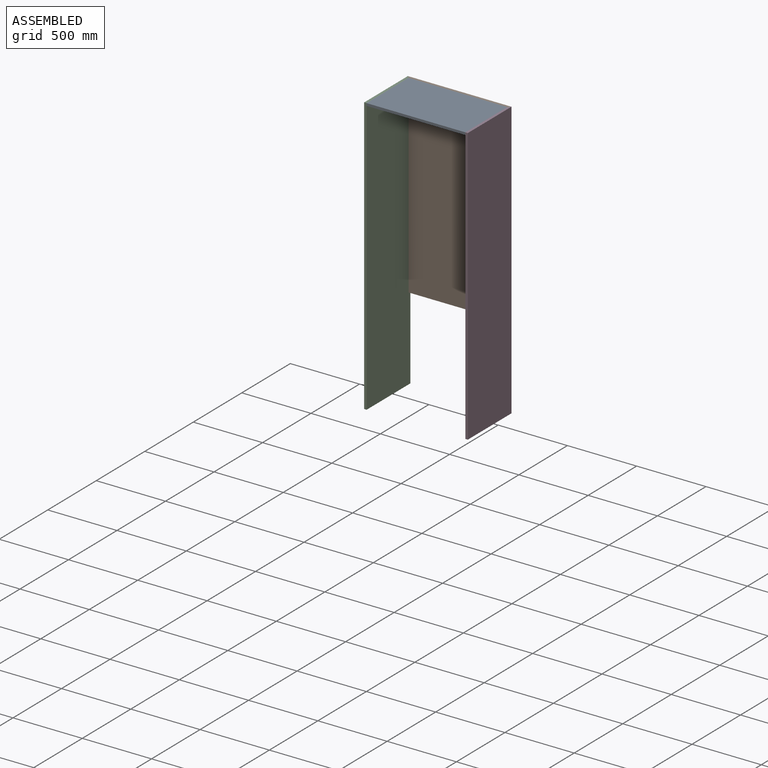
[diagram: assembled view]
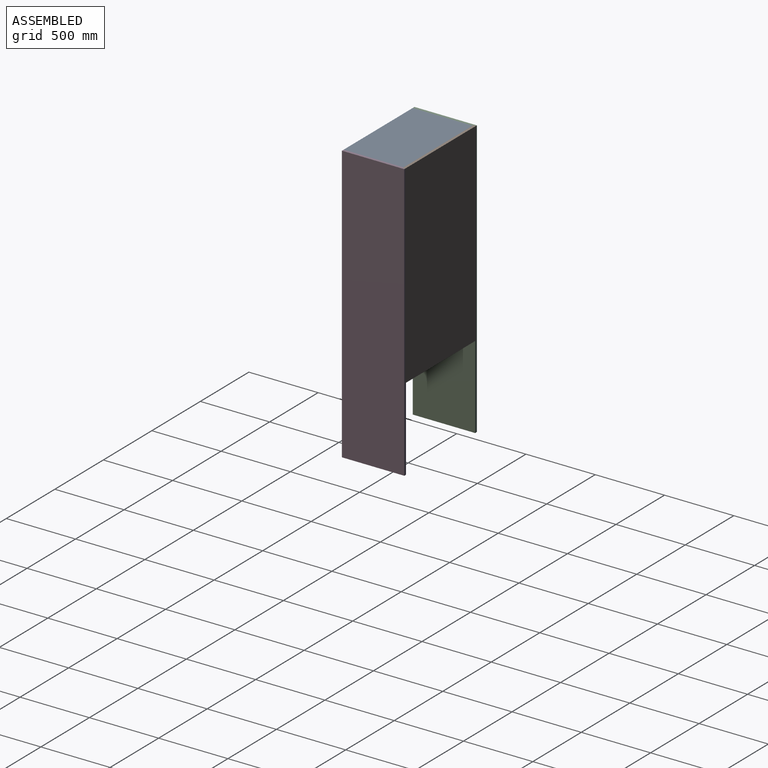
[diagram: assembled view, second angle]
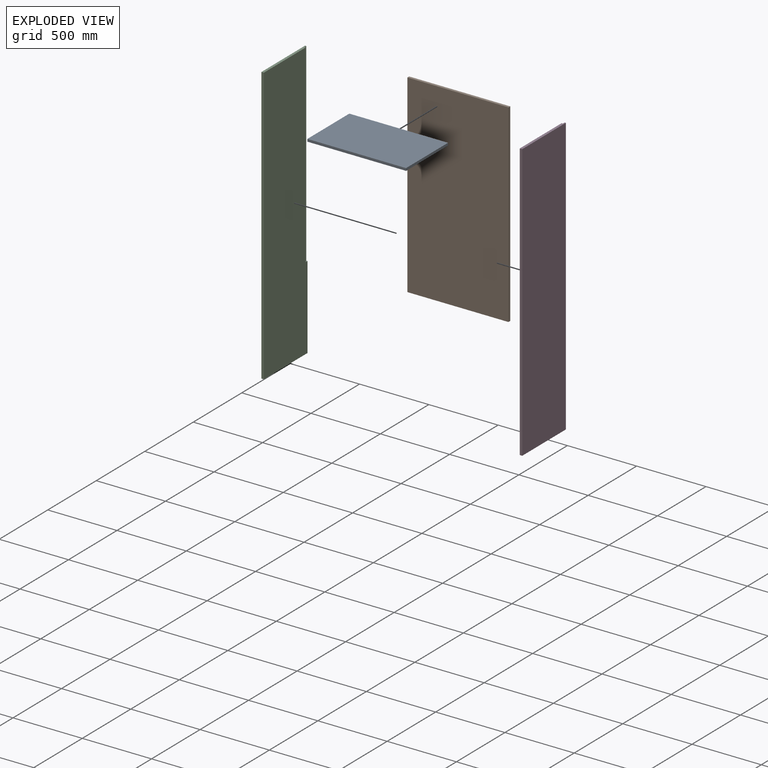
[diagram: exploded view]
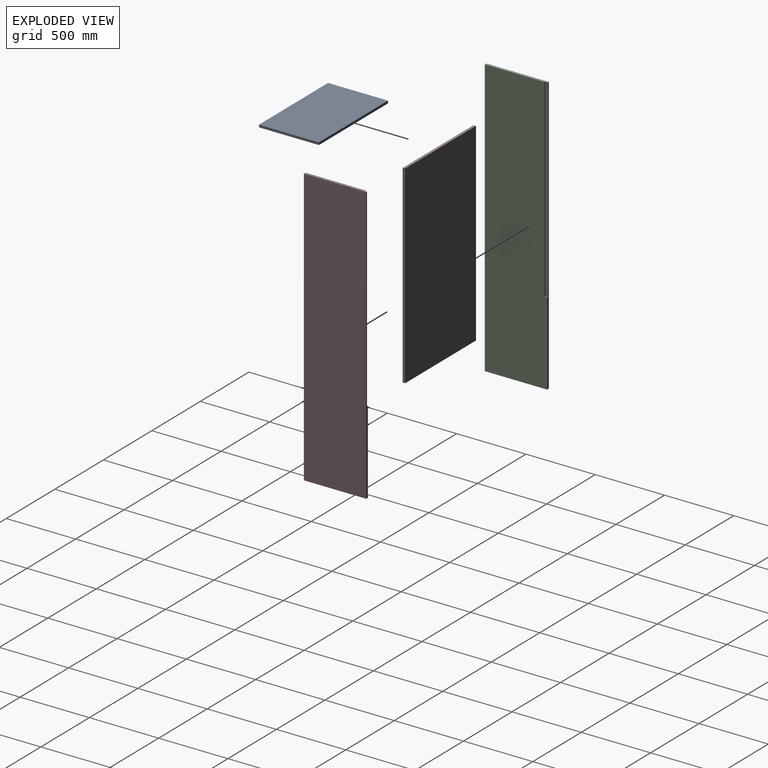
[diagram: exploded view, second angle]
ASSEMBLY  parts=4 mates=9
PART A: 6 faces, bbox 712x432x18 mm
  f0: plane 712x18mm, normal (0,1,0), area 12816mm2, adj f1,f3,f4,f5
  f1: plane 432x18mm, normal (-1,0,0), area 7776mm2, adj f0,f2,f4,f5
  f2: plane 712x18mm, normal (0,-1,0), area 12816mm2, adj f1,f3,f4,f5
  f3: plane 432x18mm, normal (1,0,0), area 7776mm2, adj f0,f2,f4,f5
  f4: plane 712x432mm, normal (0,0,1), area 307584mm2, adj f0,f1,f2,f3
  f5: plane 712x432mm, normal (0,0,-1), area 307584mm2, adj f0,f1,f2,f3
PART B: 6 faces, bbox 730x18x1400 mm
  f0: plane 730x18mm, normal (0,0,1), area 13140mm2, adj f1,f3,f4,f5
  f1: plane 1400x18mm, normal (-1,0,0), area 25200mm2, adj f0,f2,f4,f5
  f2: plane 730x18mm, normal (0,0,-1), area 13140mm2, adj f1,f3,f4,f5
  f3: plane 1400x18mm, normal (1,0,0), area 25200mm2, adj f0,f2,f4,f5
  f4: plane 1400x730mm, normal (0,-1,0), area 1022000mm2, adj f0,f1,f2,f3
  f5: plane 1400x730mm, normal (0,1,0), area 1022000mm2, adj f0,f1,f2,f3
PART C: 9 faces, bbox 18x450x2000 mm
  f0: plane 450x18mm, normal (0,0,1), area 7938mm2, adj f1,f2,f4,f5,f6,f7
  f1: plane 2000x450mm, normal (1,0,0), area 874800mm2, adj f0,f2,f3,f4,f6,f8
  f2: plane 2000x18mm, normal (0,-1,0), area 36000mm2, adj f0,f1,f3,f5
  f3: plane 450x18mm, normal (0,0,-1), area 8100mm2, adj f1,f2,f4,f5
  f4: plane 2000x18mm, normal (0,1,0), area 23400mm2, adj f0,f1,f3,f5,f7,f8
  f5: plane 2000x450mm, normal (-1,0,0), area 900000mm2, adj f0,f2,f3,f4
  f6: plane 1400x9mm, normal (0,1,0), area 12600mm2, adj f0,f1,f7,f8
  f7: plane 1400x18mm, normal (1,0,0), area 25200mm2, adj f0,f4,f6,f8
  f8: plane 18x9mm, normal (0,0,1), area 162mm2, adj f1,f4,f6,f7
PART D: 9 faces, bbox 18x450x2000 mm
  f0: plane 2000x18mm, normal (0,1,0), area 23400mm2, adj f1,f3,f4,f5,f7,f8
  f1: plane 450x18mm, normal (0,0,1), area 7938mm2, adj f0,f2,f4,f5,f6,f7
  f2: plane 2000x18mm, normal (0,-1,0), area 36000mm2, adj f1,f3,f4,f5
  f3: plane 450x18mm, normal (0,0,-1), area 8100mm2, adj f0,f2,f4,f5
  f4: plane 2000x450mm, normal (1,0,0), area 900000mm2, adj f0,f1,f2,f3
  f5: plane 2000x450mm, normal (-1,0,0), area 874800mm2, adj f0,f1,f2,f3,f6,f8
  f6: plane 1400x9mm, normal (0,1,0), area 12600mm2, adj f1,f5,f7,f8
  f7: plane 1400x18mm, normal (-1,0,0), area 25200mm2, adj f0,f1,f6,f8
  f8: plane 18x9mm, normal (0,0,1), area 162mm2, adj f0,f5,f6,f7
PLACE A rot(axis=(1,0,0),180deg) t=(-400.77,217.97,-89.28)mm
PLACE B t=(-496.57,477.17,-1108.57)mm
PLACE C t=(-884.79,794.92,-1085.72)mm
PLACE D t=(-154.79,274.06,-1883.94)mm
MATE planar B.f3 <-> D.f7  axis (1,0,0) through (-145.79,468.17,-789.28)mm
MATE planar B.f2 <-> C.f8  axis (0,0,-1) through (-510.79,468.17,-1489.28)mm
MATE planar A.f3 <-> D.f5  axis (1,0,0) through (-154.79,27.17,-89.28)mm
MATE planar D.f6 <-> B.f4  axis (0,1,0) through (-145.79,459.17,-89.28)mm
MATE fastened A.f1 <-> C.f1  axis (-1,0,0) through (-866.79,27.17,-89.28)mm
MATE planar A.f2 <-> B.f4  axis (0,1,0) through (-510.79,459.17,-98.28)mm
MATE planar C.f6 <-> B.f4  axis (0,1,0) through (-875.79,459.17,-89.28)mm
MATE planar D.f8 <-> B.f2  axis (0,0,1) through (-150.29,468.17,-1489.28)mm
MATE planar A.f3 <-> D.f5  axis (1,0,0) through (-154.79,243.17,-98.28)mm
